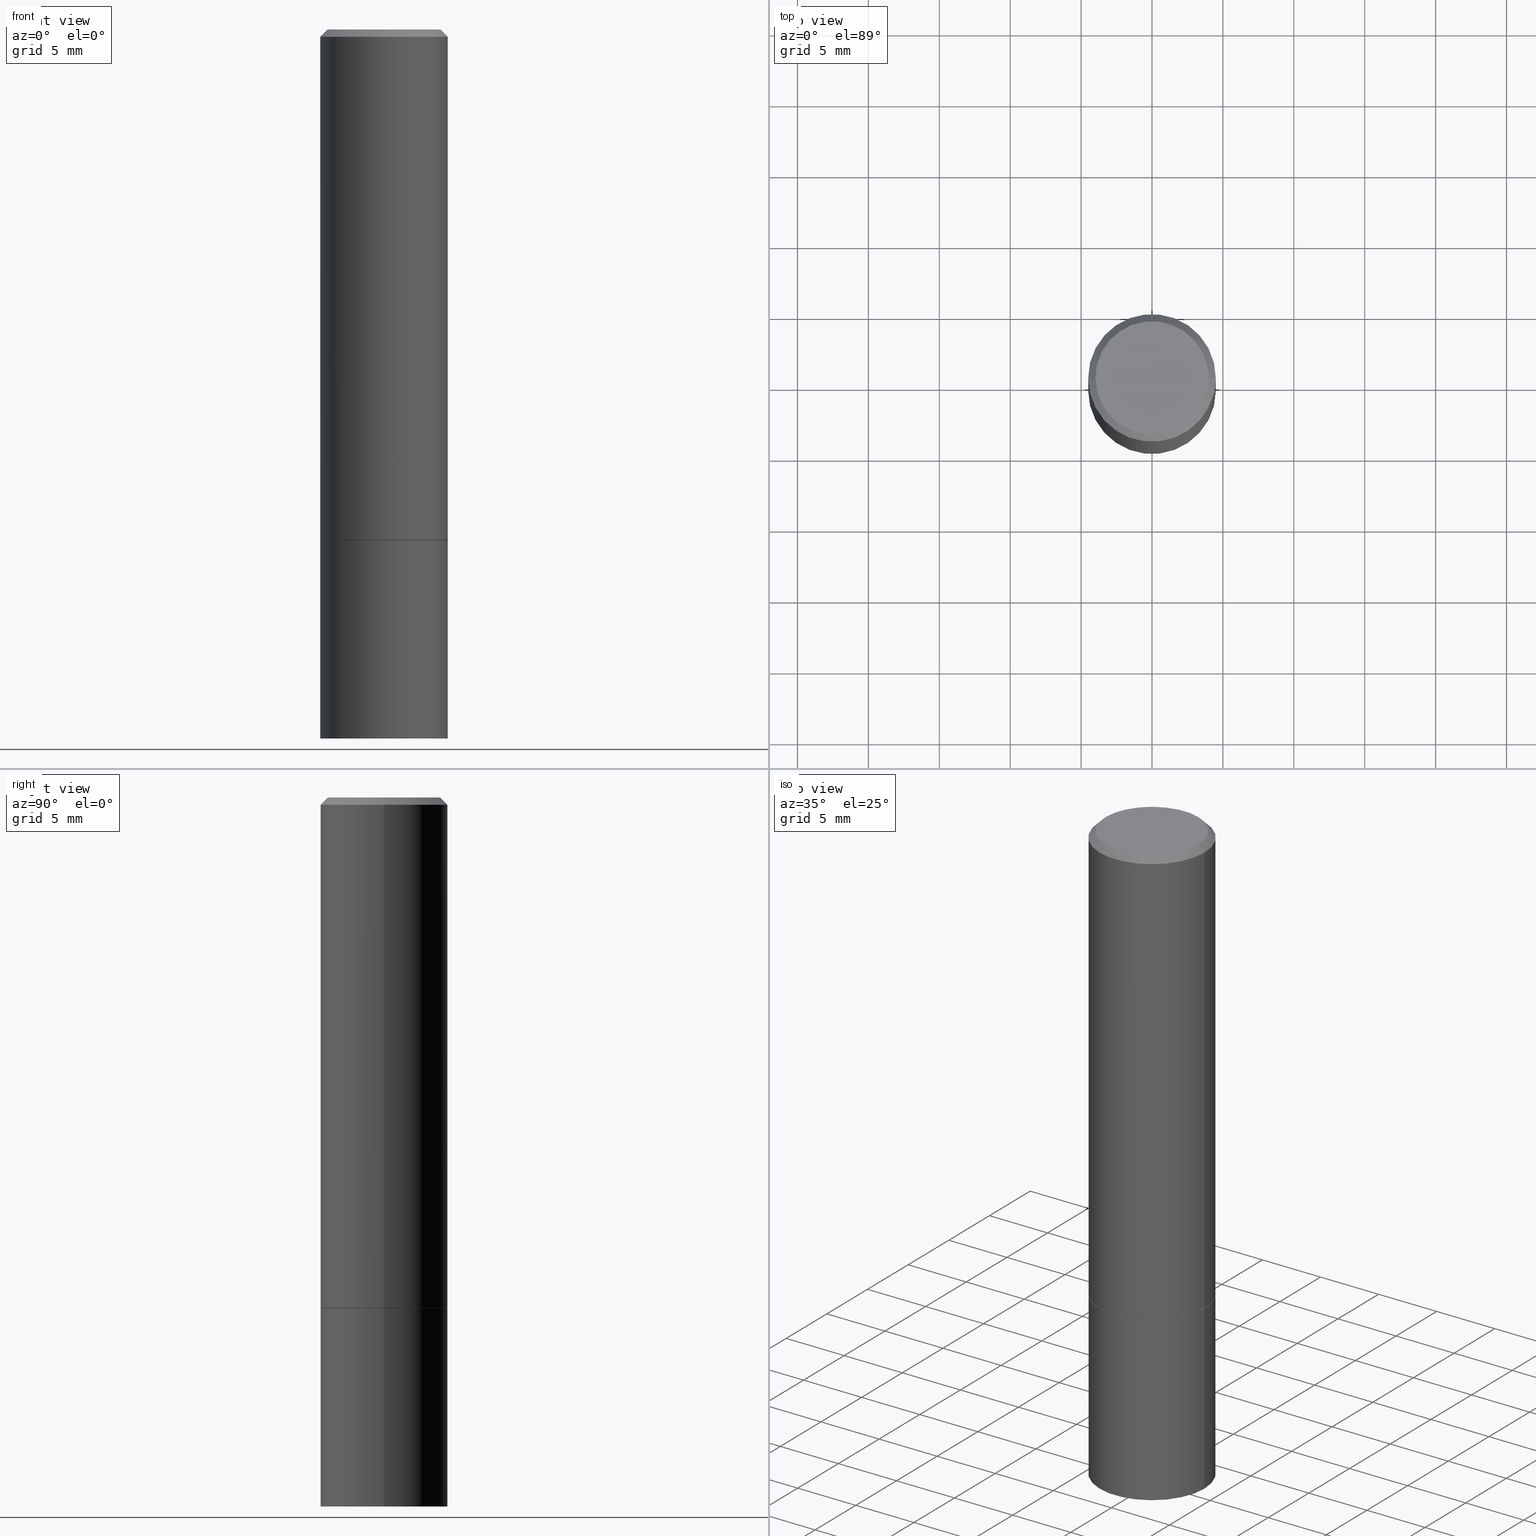
[diagram: canonical four-view strip — front | top / right | iso, engineering-drawing reading convention]
A machine part, canonical four-view strip (front | top / right | iso — engineering-drawing reading convention). The complete STEP part file that produces these views, byte-faithful:
ISO-10303-21;
HEADER;
FILE_DESCRIPTION (( 'STEP AP203' ),
    '1' );
FILE_NAME ('49190.STEP',
    '2024-02-28T16:54:01',
    ( '' ),
    ( '' ),
    'SwSTEP 2.0',
    'SolidWorks 2023',
    '' );
FILE_SCHEMA (( 'CONFIG_CONTROL_DESIGN' ));
ENDSEC;

DATA;
#1 = DIRECTION ( 'NONE',  ( -1.000000000000000000, 6.982962677686265922E-15, -4.876176775795935793E-29 ) ) ;
#2 = AXIS2_PLACEMENT_3D ( 'NONE', #68, #262, #7 ) ;
#3 = LOCAL_TIME ( 11, 54, 1.000000000000000000, #5 ) ;
#4 = ORIENTED_EDGE ( 'NONE', *, *, #314, .F. ) ;
#5 = COORDINATED_UNIVERSAL_TIME_OFFSET ( 5, 0, .BEHIND. ) ;
#6 = ORIENTED_EDGE ( 'NONE', *, *, #24, .F. ) ;
#7 = DIRECTION ( 'NONE',  ( 1.000000000000000000, -6.982962677686266711E-15, 0.000000000000000000 ) ) ;
#8 = ORIENTED_EDGE ( 'NONE', *, *, #40, .F. ) ;
#9 = AXIS2_PLACEMENT_3D ( 'NONE', #45, #157, #112 ) ;
#10 = PERSON_AND_ORGANIZATION ( #44, #79 ) ;
#11 = EDGE_CURVE ( 'NONE', #143, #229, #151, .T. ) ;
#12 = DESIGN_CONTEXT ( 'detailed design', #41, 'design' ) ;
#13 = CARTESIAN_POINT ( 'NONE',  ( -0.1771499999999999186, 1.258726456399016901E-15, -8.713893512386561121E-30 ) ) ;
#14 = FACE_OUTER_BOUND ( 'NONE', #281, .T. ) ;
#15 = DIRECTION ( 'NONE',  ( -2.445468806185136597E-29, 3.491481338843145583E-15, 1.000000000000000000 ) ) ;
#16 = DIRECTION ( 'NONE',  ( 0.7071067811865466846, -7.319954787623252890E-15, -0.7071067811865483499 ) ) ;
#17 = CC_DESIGN_DATE_AND_TIME_ASSIGNMENT ( #161, #347, ( #217 ) ) ;
#18 = DIRECTION ( 'NONE',  ( -1.000000000000000000, 6.982962677686265922E-15, -4.876176775795935793E-29 ) ) ;
#19 = AXIS2_PLACEMENT_3D ( 'NONE', #97, #242, #117 ) ;
#20 = DIRECTION ( 'NONE',  ( 2.445468806185136597E-29, -3.491481338843145583E-15, -1.000000000000000000 ) ) ;
#21 = CC_DESIGN_PERSON_AND_ORGANIZATION_ASSIGNMENT ( #149, #284, ( #166 ) ) ;
#22 = DIRECTION ( 'NONE',  ( 1.000000000000000000, 0.000000000000000000, 0.000000000000000000 ) ) ;
#23 = LINE ( 'NONE', #165, #152 ) ;
#24 = EDGE_CURVE ( 'NONE', #295, #146, #95, .T. ) ;
#25 = MECHANICAL_CONTEXT ( 'NONE', #115, 'mechanical' ) ;
#26 = CARTESIAN_POINT ( 'NONE',  ( 0.000000000000000000, 0.000000000000000000, 0.000000000000000000 ) ) ;
#27 = DIRECTION ( 'NONE',  ( 1.000000000000000000, -6.982962677686266711E-15, 0.000000000000000000 ) ) ;
#28 = VERTEX_POINT ( 'NONE', #228 ) ;
#29 = PERSON_AND_ORGANIZATION ( #44, #79 ) ;
#30 = CIRCLE ( 'NONE', #136, 0.1771499999999998354 ) ;
#31 = ORIENTED_EDGE ( 'NONE', *, *, #209, .T. ) ;
#32 = PERSON_AND_ORGANIZATION ( #44, #79 ) ;
#33 = ORIENTED_EDGE ( 'NONE', *, *, #11, .F. ) ;
#34 = COORDINATED_UNIVERSAL_TIME_OFFSET ( 5, 0, .BEHIND. ) ;
#35 = ORIENTED_EDGE ( 'NONE', *, *, #24, .T. ) ;
#36 =( GEOMETRIC_REPRESENTATION_CONTEXT ( 3 ) GLOBAL_UNCERTAINTY_ASSIGNED_CONTEXT ( ( #291 ) ) GLOBAL_UNIT_ASSIGNED_CONTEXT ( ( #85, #219, #245 ) ) REPRESENTATION_CONTEXT ( 'NONE', 'WORKASPACE' ) );
#37 = DIMENSIONAL_EXPONENTS ( 1.000000000000000000, 0.000000000000000000, 0.000000000000000000, 0.000000000000000000, 0.000000000000000000, 0.000000000000000000, 0.000000000000000000 ) ;
#38 = AXIS2_PLACEMENT_3D ( 'NONE', #237, #357, #232 ) ;
#39 = APPROVAL_DATE_TIME ( #147, #200 ) ;
#40 = EDGE_CURVE ( 'NONE', #295, #334, #275, .T. ) ;
#41 = APPLICATION_CONTEXT ( 'configuration controlled 3d designs of mechanical parts and assemblies' ) ;
#42 = PERSON_AND_ORGANIZATION ( #44, #79 ) ;
#43 = EDGE_CURVE ( 'NONE', #146, #84, #52, .T. ) ;
#44 = PERSON ( 'UNSPECIFIED', 'UNSPECIFIED', 'UNSPECIFIED', ('UNSPECIFIED'), ('UNSPECIFIED'), ('UNSPECIFIED') ) ;
#45 = CARTESIAN_POINT ( 'NONE',  ( 3.465962939006193759E-29, -4.948476501542390442E-15, -1.417300000000000004 ) ) ;
#46 = CARTESIAN_POINT ( 'NONE',  ( 3.463517470200008716E-29, -4.944985020203546646E-15, -1.416299999999999892 ) ) ;
#47 = LINE ( 'NONE', #156, #76 ) ;
#48 = PLANE ( 'NONE',  #74 ) ;
#49 = ADVANCED_BREP_SHAPE_REPRESENTATION ( '49190', ( #326, #319, #362 ), #36 ) ;
#50 = DIRECTION ( 'NONE',  ( -2.445468806185136877E-29, 3.491481338843145188E-15, 1.000000000000000000 ) ) ;
#51 = CARTESIAN_POINT ( 'NONE',  ( -0.1761500000000000010, -3.691557018152751358E-15, -1.417300000000000004 ) ) ;
#52 = CIRCLE ( 'NONE', #268, 0.1771500000000000019 ) ;
#53 = ORIENTED_EDGE ( 'NONE', *, *, #231, .F. ) ;
#54 = LOCAL_TIME ( 11, 54, 1.000000000000000000, #343 ) ;
#55 = FACE_OUTER_BOUND ( 'NONE', #160, .T. ) ;
#56 = DIRECTION ( 'NONE',  ( 1.000000000000000000, -6.982962677686267499E-15, 0.000000000000000000 ) ) ;
#57 = VERTEX_POINT ( 'NONE', #292 ) ;
#58 = LENGTH_MEASURE_WITH_UNIT ( LENGTH_MEASURE( 0.02539999999999999897 ), #140 );
#59 = CARTESIAN_POINT ( 'NONE',  ( 3.465962939006193759E-29, -4.948476501542390442E-15, -1.417300000000000004 ) ) ;
#60 = EDGE_CURVE ( 'NONE', #87, #66, #282, .T. ) ;
#61 = CLOSED_SHELL ( 'NONE', ( #276, #240, #159, #77, #172, #142, #325, #354 ) ) ;
#62 = APPROVAL ( #311, 'UNSPECIFIED' ) ;
#63 = DATE_AND_TIME ( #244, #3 ) ;
#64 = ORIENTED_EDGE ( 'NONE', *, *, #318, .F. ) ;
#65 = COORDINATED_UNIVERSAL_TIME_OFFSET ( 5, 0, .BEHIND. ) ;
#66 = VERTEX_POINT ( 'NONE', #241 ) ;
#67 = DATE_AND_TIME ( #154, #54 ) ;
#68 = CARTESIAN_POINT ( 'NONE',  ( 4.890937612370283668E-31, -6.982962677686305168E-17, -0.02000000000000004205 ) ) ;
#69 = DATE_AND_TIME ( #178, #329 ) ;
#70 = ORIENTED_EDGE ( 'NONE', *, *, #226, .T. ) ;
#71 = DIRECTION ( 'NONE',  ( 1.000000000000000000, -6.982962677686266711E-15, 0.000000000000000000 ) ) ;
#72 = EDGE_CURVE ( 'NONE', #256, #28, #126, .T. ) ;
#73 = CALENDAR_DATE ( 2024, 28, 2 ) ;
#74 = AXIS2_PLACEMENT_3D ( 'NONE', #191, #265, #18 ) ;
#75 = CC_DESIGN_SECURITY_CLASSIFICATION ( #350, ( #166 ) ) ;
#76 = VECTOR ( 'NONE', #16, 39.37007874015748143 ) ;
#77 = ADVANCED_FACE ( 'NONE', ( #296 ), #137, .T. ) ;
#78 = DIRECTION ( 'NONE',  ( -2.445468806185136597E-29, 3.491481338843145583E-15, 1.000000000000000000 ) ) ;
#79 = ORGANIZATION ( 'UNSPECIFIED', 'UNSPECIFIED', '' ) ;
#80 = VECTOR ( 'NONE', #359, 39.37007874015748854 ) ;
#81 = FACE_OUTER_BOUND ( 'NONE', #177, .T. ) ;
#82 = FACE_OUTER_BOUND ( 'NONE', #253, .T. ) ;
#83 = CARTESIAN_POINT ( 'NONE',  ( 4.890937612370283668E-31, -6.982962677686305168E-17, -0.02000000000000004205 ) ) ;
#84 = VERTEX_POINT ( 'NONE', #239 ) ;
#85 =( CONVERSION_BASED_UNIT ( 'INCH', #58 ) LENGTH_UNIT ( ) NAMED_UNIT ( #37 ) );
#86 = DIRECTION ( 'NONE',  ( -2.445468806185136597E-29, 3.491481338843145583E-15, 1.000000000000000000 ) ) ;
#87 = VERTEX_POINT ( 'NONE', #51 ) ;
#88 = PLANE ( 'NONE',  #222 ) ;
#89 = CARTESIAN_POINT ( 'NONE',  ( 0.000000000000000000, 0.000000000000000000, 0.000000000000000000 ) ) ;
#90 = CC_DESIGN_PERSON_AND_ORGANIZATION_ASSIGNMENT ( #29, #224, ( #128 ) ) ;
#91 = CONICAL_SURFACE ( 'NONE', #180, 0.1761500000000000010, 0.7853981633974141952 ) ;
#92 = CARTESIAN_POINT ( 'NONE',  ( 0.000000000000000000, 0.000000000000000000, 0.000000000000000000 ) ) ;
#93 = FACE_OUTER_BOUND ( 'NONE', #310, .T. ) ;
#94 = AXIS2_PLACEMENT_3D ( 'NONE', #346, #127, #348 ) ;
#95 = LINE ( 'NONE', #286, #167 ) ;
#96 = ADVANCED_FACE ( 'NONE', ( #214 ), #48, .F. ) ;
#97 = CARTESIAN_POINT ( 'NONE',  ( 3.465962939006193759E-29, -4.948476501542390442E-15, -1.417300000000000004 ) ) ;
#98 = ORIENTED_EDGE ( 'NONE', *, *, #287, .F. ) ;
#99 = APPROVAL ( #171, 'UNSPECIFIED' ) ;
#100 = DIRECTION ( 'NONE',  ( -2.445468806185136597E-29, 3.491481338843145583E-15, 1.000000000000000000 ) ) ;
#101 = EDGE_LOOP ( 'NONE', ( #70, #312, #203, #102 ) ) ;
#102 = ORIENTED_EDGE ( 'NONE', *, *, #360, .F. ) ;
#103 = CARTESIAN_POINT ( 'NONE',  ( 3.465962939006193759E-29, -4.948476501542390442E-15, -1.417300000000000004 ) ) ;
#104 = PERSON_AND_ORGANIZATION_ROLE ( 'classification_officer' ) ;
#105 = PRODUCT_RELATED_PRODUCT_CATEGORY ( 'detail', '', ( #128 ) ) ;
#106 = CARTESIAN_POINT ( 'NONE',  ( 0.1771500000000000019, -6.185508339894512836E-15, -1.417300000000000004 ) ) ;
#107 = DIRECTION ( 'NONE',  ( -2.445468806185136597E-29, 3.491481338843145583E-15, 1.000000000000000000 ) ) ;
#108 = CONICAL_SURFACE ( 'NONE', #301, 0.1761500000000000010, 0.7853981633974141952 ) ;
#109 = AXIS2_PLACEMENT_3D ( 'NONE', #192, #335, #168 ) ;
#110 = LINE ( 'NONE', #294, #356 ) ;
#111 = CARTESIAN_POINT ( 'NONE',  ( -0.1761500000000000010, -3.696855472500973761E-15, -1.417300000000000004 ) ) ;
#112 = DIRECTION ( 'NONE',  ( 1.000000000000000000, -6.982962677686267499E-15, 0.000000000000000000 ) ) ;
#113 = CC_DESIGN_PERSON_AND_ORGANIZATION_ASSIGNMENT ( #202, #306, ( #217 ) ) ;
#114 = CYLINDRICAL_SURFACE ( 'NONE', #289, 0.1771499999999999186 ) ;
#115 = APPLICATION_CONTEXT ( 'configuration controlled 3d designs of mechanical parts and assemblies' ) ;
#116 = ORIENTED_EDGE ( 'NONE', *, *, #332, .T. ) ;
#117 = DIRECTION ( 'NONE',  ( 1.000000000000000000, -6.982962677686266711E-15, 0.000000000000000000 ) ) ;
#118 = ORIENTED_EDGE ( 'NONE', *, *, #60, .T. ) ;
#119 = APPROVAL_PERSON_ORGANIZATION ( #42, #200, #204 ) ;
#120 = DIRECTION ( 'NONE',  ( -2.445468806185136597E-29, 3.491481338843145583E-15, 1.000000000000000000 ) ) ;
#121 = CIRCLE ( 'NONE', #235, 0.1571499999999998454 ) ;
#122 = ORIENTED_EDGE ( 'NONE', *, *, #40, .T. ) ;
#123 = ORIENTED_EDGE ( 'NONE', *, *, #60, .F. ) ;
#124 = DIRECTION ( 'NONE',  ( 1.000000000000000000, -6.982962677686267499E-15, 0.000000000000000000 ) ) ;
#125 = DIRECTION ( 'NONE',  ( -2.445468806185136877E-29, 3.491481338843145188E-15, 1.000000000000000000 ) ) ;
#126 = CIRCLE ( 'NONE', #290, 0.1571499999999998454 ) ;
#127 = DIRECTION ( 'NONE',  ( -2.445468806185136597E-29, 3.491481338843145583E-15, 1.000000000000000000 ) ) ;
#128 = PRODUCT ( '49190', '49190', '', ( #25 ) ) ;
#129 = CARTESIAN_POINT ( 'NONE',  ( 3.465962939006193759E-29, -4.948476501542390442E-15, -1.417300000000000004 ) ) ;
#130 = EDGE_CURVE ( 'NONE', #57, #283, #215, .T. ) ;
#131 = CC_DESIGN_PERSON_AND_ORGANIZATION_ASSIGNMENT ( #32, #104, ( #350 ) ) ;
#132 = DIRECTION ( 'NONE',  ( -2.445468806185136877E-29, 3.491481338843145188E-15, 1.000000000000000000 ) ) ;
#133 = CYLINDRICAL_SURFACE ( 'NONE', #248, 0.1771500000000000019 ) ;
#134 = CARTESIAN_POINT ( 'NONE',  ( 0.000000000000000000, 0.000000000000000000, 0.000000000000000000 ) ) ;
#135 = EDGE_CURVE ( 'NONE', #87, #283, #211, .T. ) ;
#136 = AXIS2_PLACEMENT_3D ( 'NONE', #233, #213, #322 ) ;
#137 = CONICAL_SURFACE ( 'NONE', #212, 0.1771499999999998354, 0.7853981633974471688 ) ;
#138 = DIRECTION ( 'NONE',  ( 2.438088387897960049E-29, -3.491481338843145188E-15, -1.000000000000000000 ) ) ;
#139 = ORIENTED_EDGE ( 'NONE', *, *, #226, .F. ) ;
#140 =( LENGTH_UNIT ( ) NAMED_UNIT ( * ) SI_UNIT ( $, .METRE. ) );
#141 = DIRECTION ( 'NONE',  ( -2.438088387897960049E-29, 3.491481338843145188E-15, 1.000000000000000000 ) ) ;
#142 = ADVANCED_FACE ( 'NONE', ( #216 ), #91, .T. ) ;
#143 = VERTEX_POINT ( 'NONE', #328 ) ;
#144 = VECTOR ( 'NONE', #358, 39.37007874015748143 ) ;
#145 = CARTESIAN_POINT ( 'NONE',  ( -0.1771500000000000019, -4.652002302128544174E-15, -1.968500000000000139 ) ) ;
#146 = VERTEX_POINT ( 'NONE', #106 ) ;
#147 = DATE_AND_TIME ( #73, #243 ) ;
#148 = ORIENTED_EDGE ( 'NONE', *, *, #186, .T. ) ;
#149 = PERSON_AND_ORGANIZATION ( #44, #79 ) ;
#150 = EDGE_LOOP ( 'NONE', ( #173, #118, #307, #342 ) ) ;
#151 = CIRCLE ( 'NONE', #2, 0.1771499999999998354 ) ;
#152 = VECTOR ( 'NONE', #364, 39.37007874015748143 ) ;
#153 = SECURITY_CLASSIFICATION_LEVEL ( 'unclassified' ) ;
#154 = CALENDAR_DATE ( 2024, 28, 2 ) ;
#155 = ORIENTED_EDGE ( 'NONE', *, *, #72, .T. ) ;
#156 = CARTESIAN_POINT ( 'NONE',  ( 0.1771499999999998354, -1.285166847082088818E-15, -0.02000000000000004205 ) ) ;
#157 = DIRECTION ( 'NONE',  ( -2.445468806185136597E-29, 3.491481338843145583E-15, 1.000000000000000000 ) ) ;
#158 = AXIS2_PLACEMENT_3D ( 'NONE', #59, #100, #274 ) ;
#159 = ADVANCED_FACE ( 'NONE', ( #82 ), #323, .T. ) ;
#160 = EDGE_LOOP ( 'NONE', ( #155, #31 ) ) ;
#161 = DATE_AND_TIME ( #340, #321 ) ;
#162 = DIRECTION ( 'NONE',  ( 1.000000000000000000, -6.982962677686266711E-15, 4.876176775795935232E-29 ) ) ;
#163 = ORIENTED_EDGE ( 'NONE', *, *, #43, .F. ) ;
#164 = CARTESIAN_POINT ( 'NONE',  ( 0.1761500000000000010, -6.178525377216826033E-15, -1.417300000000000004 ) ) ;
#165 = CARTESIAN_POINT ( 'NONE',  ( 0.1771499999999999186, -1.237031838352121605E-15, 8.638147158322495756E-30 ) ) ;
#166 = PRODUCT_DEFINITION_FORMATION_WITH_SPECIFIED_SOURCE ( 'ANY', '', #128, .NOT_KNOWN. ) ;
#167 = VECTOR ( 'NONE', #125, 39.37007874015748143 ) ;
#168 = DIRECTION ( 'NONE',  ( -1.000000000000000000, 6.982962677686265922E-15, -4.876176775795935793E-29 ) ) ;
#169 = DIRECTION ( 'NONE',  ( 1.000000000000000000, -6.982962677686266711E-15, 4.876176775795935793E-29 ) ) ;
#170 = ORIENTED_EDGE ( 'NONE', *, *, #314, .T. ) ;
#171 = APPROVAL_STATUS ( 'not_yet_approved' ) ;
#172 = ADVANCED_FACE ( 'NONE', ( #361 ), #114, .T. ) ;
#173 = ORIENTED_EDGE ( 'NONE', *, *, #135, .F. ) ;
#174 = APPROVAL_ROLE ( '' ) ;
#175 = ORIENTED_EDGE ( 'NONE', *, *, #247, .T. ) ;
#176 = LINE ( 'NONE', #206, #144 ) ;
#177 = EDGE_LOOP ( 'NONE', ( #8, #207 ) ) ;
#178 = CALENDAR_DATE ( 2024, 28, 2 ) ;
#179 = ORIENTED_EDGE ( 'NONE', *, *, #305, .T. ) ;
#180 = AXIS2_PLACEMENT_3D ( 'NONE', #331, #327, #56 ) ;
#181 = ADVANCED_FACE ( 'NONE', ( #14 ), #133, .T. ) ;
#182 = DIRECTION ( 'NONE',  ( 1.000000000000000000, -6.982962677686267499E-15, 4.876176775795935793E-29 ) ) ;
#183 = PLANE ( 'NONE',  #109 ) ;
#184 = LINE ( 'NONE', #13, #349 ) ;
#185 = CARTESIAN_POINT ( 'NONE',  ( 4.890937612370283668E-31, -6.982962677686305168E-17, -0.02000000000000004205 ) ) ;
#186 = EDGE_CURVE ( 'NONE', #28, #229, #47, .T. ) ;
#187 = DIRECTION ( 'NONE',  ( 2.445468806185136597E-29, -3.491481338843145583E-15, -1.000000000000000000 ) ) ;
#188 = AXIS2_PLACEMENT_3D ( 'NONE', #46, #15, #264 ) ;
#189 = EDGE_LOOP ( 'NONE', ( #273, #116 ) ) ;
#190 = APPROVAL_DATE_TIME ( #63, #99 ) ;
#191 = CARTESIAN_POINT ( 'NONE',  ( 1.237031838352156709E-15, 0.1771499999999950614, -1.417300000000000448 ) ) ;
#192 = CARTESIAN_POINT ( 'NONE',  ( 1.237031838352170120E-15, 0.1771499999999931463, -1.968500000000000583 ) ) ;
#193 = ORIENTED_EDGE ( 'NONE', *, *, #287, .T. ) ;
#194 = DIRECTION ( 'NONE',  ( 0.7071067811865232589, -2.468850131082003836E-15, 0.7071067811865715536 ) ) ;
#195 = CIRCLE ( 'NONE', #188, 0.1771500000000000019 ) ;
#196 = VECTOR ( 'NONE', #194, 39.37007874015748854 ) ;
#197 = CIRCLE ( 'NONE', #19, 0.1771500000000000019 ) ;
#198 = APPROVAL_ROLE ( '' ) ;
#199 = CYLINDRICAL_SURFACE ( 'NONE', #300, 0.1771499999999999186 ) ;
#200 = APPROVAL ( #258, 'UNSPECIFIED' ) ;
#201 = ORIENTED_EDGE ( 'NONE', *, *, #186, .F. ) ;
#202 = PERSON_AND_ORGANIZATION ( #44, #79 ) ;
#203 = ORIENTED_EDGE ( 'NONE', *, *, #130, .F. ) ;
#204 = APPROVAL_ROLE ( '' ) ;
#205 = ORIENTED_EDGE ( 'NONE', *, *, #318, .T. ) ;
#206 = CARTESIAN_POINT ( 'NONE',  ( -0.1771499999999998354, 1.167202211575257912E-15, -0.02000000000000004205 ) ) ;
#207 = ORIENTED_EDGE ( 'NONE', *, *, #247, .F. ) ;
#208 = DIRECTION ( 'NONE',  ( -2.445468806185136597E-29, 3.491481338843145583E-15, 1.000000000000000000 ) ) ;
#209 = EDGE_CURVE ( 'NONE', #28, #256, #121, .T. ) ;
#210 = APPROVAL_PERSON_ORGANIZATION ( #308, #62, #174 ) ;
#211 = LINE ( 'NONE', #111, #80 ) ;
#212 = AXIS2_PLACEMENT_3D ( 'NONE', #185, #187, #324 ) ;
#213 = DIRECTION ( 'NONE',  ( -2.445468806185136597E-29, 3.491481338843145583E-15, 1.000000000000000000 ) ) ;
#214 = FACE_OUTER_BOUND ( 'NONE', #189, .T. ) ;
#215 = CIRCLE ( 'NONE', #38, 0.1771500000000000019 ) ;
#216 = FACE_OUTER_BOUND ( 'NONE', #150, .T. ) ;
#217 = PRODUCT_DEFINITION ( 'UNKNOWN', '', #166, #12 ) ;
#218 = CARTESIAN_POINT ( 'NONE',  ( 0.000000000000000000, 0.000000000000000000, 0.000000000000000000 ) ) ;
#219 =( NAMED_UNIT ( * ) PLANE_ANGLE_UNIT ( ) SI_UNIT ( $, .RADIAN. ) );
#220 = DIRECTION ( 'NONE',  ( 1.000000000000000000, -6.982962677686265922E-15, 4.876176775795935793E-29 ) ) ;
#221 = ADVANCED_FACE ( 'NONE', ( #81 ), #183, .T. ) ;
#222 = AXIS2_PLACEMENT_3D ( 'NONE', #271, #138, #1 ) ;
#223 = EDGE_LOOP ( 'NONE', ( #122, #205, #163, #6 ) ) ;
#224 = PERSON_AND_ORGANIZATION_ROLE ( 'design_owner' ) ;
#225 = EDGE_LOOP ( 'NONE', ( #201, #315, #298, #227 ) ) ;
#226 = EDGE_CURVE ( 'NONE', #66, #87, #257, .T. ) ;
#227 = ORIENTED_EDGE ( 'NONE', *, *, #11, .T. ) ;
#228 = CARTESIAN_POINT ( 'NONE',  ( 0.1571499999999998454, -1.181647053715941838E-15, 7.968752866068134566E-30 ) ) ;
#229 = VERTEX_POINT ( 'NONE', #272 ) ;
#230 = PERSON_AND_ORGANIZATION_ROLE ( 'creator' ) ;
#231 = EDGE_CURVE ( 'NONE', #57, #229, #23, .T. ) ;
#232 = DIRECTION ( 'NONE',  ( 1.000000000000000000, -6.982962677686266711E-15, 0.000000000000000000 ) ) ;
#233 = CARTESIAN_POINT ( 'NONE',  ( 4.890937612370283668E-31, -6.982962677686305168E-17, -0.02000000000000004205 ) ) ;
#234 = DIRECTION ( 'NONE',  ( -2.445468806185136597E-29, 3.491481338843145583E-15, 1.000000000000000000 ) ) ;
#235 = AXIS2_PLACEMENT_3D ( 'NONE', #134, #234, #355 ) ;
#236 = CC_DESIGN_APPROVAL ( #99, ( #217 ) ) ;
#237 = CARTESIAN_POINT ( 'NONE',  ( 3.463517470200008716E-29, -4.944985020203546646E-15, -1.416299999999999892 ) ) ;
#238 = AXIS2_PLACEMENT_3D ( 'NONE', #278, #141, #220 ) ;
#239 = CARTESIAN_POINT ( 'NONE',  ( -0.1771500000000000019, -4.652002302128544174E-15, -1.417300000000000004 ) ) ;
#240 = ADVANCED_FACE ( 'NONE', ( #93 ), #199, .T. ) ;
#241 = CARTESIAN_POINT ( 'NONE',  ( 0.1761500000000000010, -6.178525377216826033E-15, -1.417300000000000004 ) ) ;
#242 = DIRECTION ( 'NONE',  ( -2.445468806185136597E-29, 3.491481338843145583E-15, 1.000000000000000000 ) ) ;
#243 = LOCAL_TIME ( 11, 54, 1.000000000000000000, #288 ) ;
#244 = CALENDAR_DATE ( 2024, 28, 2 ) ;
#245 =( NAMED_UNIT ( * ) SI_UNIT ( $, .STERADIAN. ) SOLID_ANGLE_UNIT ( ) );
#246 = CARTESIAN_POINT ( 'NONE',  ( -0.1571499999999998454, 1.132287398186826855E-15, -7.796414549896502556E-30 ) ) ;
#247 = EDGE_CURVE ( 'NONE', #334, #295, #255, .T. ) ;
#248 = AXIS2_PLACEMENT_3D ( 'NONE', #320, #78, #293 ) ;
#249 = ORIENTED_EDGE ( 'NONE', *, *, #130, .T. ) ;
#250 = APPLICATION_PROTOCOL_DEFINITION ( 'international standard', 'config_control_design', 1994, #41 ) ;
#251 = ORIENTED_EDGE ( 'NONE', *, *, #231, .T. ) ;
#252 = SHAPE_DEFINITION_REPRESENTATION ( #260, #49 ) ;
#253 = EDGE_LOOP ( 'NONE', ( #270, #148, #170, #344 ) ) ;
#254 = DATE_TIME_ROLE ( 'classification_date' ) ;
#255 = CIRCLE ( 'NONE', #266, 0.1771500000000000019 ) ;
#256 = VERTEX_POINT ( 'NONE', #246 ) ;
#257 = CIRCLE ( 'NONE', #158, 0.1761500000000000010 ) ;
#258 = APPROVAL_STATUS ( 'not_yet_approved' ) ;
#259 = DIRECTION ( 'NONE',  ( -2.445468806185136597E-29, 3.491481338843145583E-15, 1.000000000000000000 ) ) ;
#260 = PRODUCT_DEFINITION_SHAPE ( 'NONE', 'NONE',  #217 ) ;
#261 = CARTESIAN_POINT ( 'NONE',  ( -0.1771500000000000019, -1.248680867091185705E-15, -1.416299999999999892 ) ) ;
#262 = DIRECTION ( 'NONE',  ( -2.445468806185136597E-29, 3.491481338843145583E-15, 1.000000000000000000 ) ) ;
#263 = CARTESIAN_POINT ( 'NONE',  ( 0.000000000000000000, 0.000000000000000000, 0.000000000000000000 ) ) ;
#264 = DIRECTION ( 'NONE',  ( 1.000000000000000000, -6.982962677686266711E-15, 0.000000000000000000 ) ) ;
#265 = DIRECTION ( 'NONE',  ( 2.438088387897960049E-29, -3.491481338843145188E-15, -1.000000000000000000 ) ) ;
#266 = AXIS2_PLACEMENT_3D ( 'NONE', #303, #280, #27 ) ;
#267 = CC_DESIGN_APPROVAL ( #200, ( #350 ) ) ;
#268 = AXIS2_PLACEMENT_3D ( 'NONE', #103, #208, #71 ) ;
#269 = CC_DESIGN_DATE_AND_TIME_ASSIGNMENT ( #67, #254, ( #350 ) ) ;
#270 = ORIENTED_EDGE ( 'NONE', *, *, #209, .F. ) ;
#271 = CARTESIAN_POINT ( 'NONE',  ( 1.097372584798395600E-15, 0.1571499999999998454, -5.486862923991998709E-16 ) ) ;
#272 = CARTESIAN_POINT ( 'NONE',  ( 0.1771499999999998354, -1.285166847082088818E-15, -0.02000000000000004205 ) ) ;
#273 = ORIENTED_EDGE ( 'NONE', *, *, #43, .T. ) ;
#274 = DIRECTION ( 'NONE',  ( 1.000000000000000000, -6.982962677686267499E-15, 0.000000000000000000 ) ) ;
#275 = CIRCLE ( 'NONE', #94, 0.1771500000000000019 ) ;
#276 = ADVANCED_FACE ( 'NONE', ( #351 ), #108, .T. ) ;
#277 = DIRECTION ( 'NONE',  ( 1.000000000000000000, -6.982962677686266711E-15, 4.876176775795935232E-29 ) ) ;
#278 = CARTESIAN_POINT ( 'NONE',  ( 3.465962939006193759E-29, -4.948476501542390442E-15, -1.417300000000000004 ) ) ;
#279 = EDGE_CURVE ( 'NONE', #256, #143, #176, .T. ) ;
#280 = DIRECTION ( 'NONE',  ( -2.445468806185136597E-29, 3.491481338843145583E-15, 1.000000000000000000 ) ) ;
#281 = EDGE_LOOP ( 'NONE', ( #64, #175, #35, #339 ) ) ;
#282 = CIRCLE ( 'NONE', #9, 0.1761500000000000010 ) ;
#283 = VERTEX_POINT ( 'NONE', #261 ) ;
#284 = PERSON_AND_ORGANIZATION_ROLE ( 'design_supplier' ) ;
#285 = EDGE_LOOP ( 'NONE', ( #98, #179, #251, #33 ) ) ;
#286 = CARTESIAN_POINT ( 'NONE',  ( 0.1771500000000000019, -1.237031838352122197E-15, 8.638147158322499960E-30 ) ) ;
#287 = EDGE_CURVE ( 'NONE', #283, #143, #184, .T. ) ;
#288 = COORDINATED_UNIVERSAL_TIME_OFFSET ( 5, 0, .BEHIND. ) ;
#289 = AXIS2_PLACEMENT_3D ( 'NONE', #218, #86, #162 ) ;
#290 = AXIS2_PLACEMENT_3D ( 'NONE', #263, #107, #182 ) ;
#291 = UNCERTAINTY_MEASURE_WITH_UNIT (LENGTH_MEASURE( 1.000000000000000082E-05 ), #85, 'distance_accuracy_value', 'NONE');
#292 = CARTESIAN_POINT ( 'NONE',  ( 0.1771500000000000019, -6.182016858555669040E-15, -1.416299999999999892 ) ) ;
#293 = DIRECTION ( 'NONE',  ( 1.000000000000000000, -6.982962677686266711E-15, 4.876176775795935793E-29 ) ) ;
#294 = CARTESIAN_POINT ( 'NONE',  ( -0.1771500000000000019, 1.258726456399017493E-15, -8.713893512386565325E-30 ) ) ;
#295 = VERTEX_POINT ( 'NONE', #352 ) ;
#296 = FACE_OUTER_BOUND ( 'NONE', #225, .T. ) ;
#297 = CYLINDRICAL_SURFACE ( 'NONE', #317, 0.1771500000000000019 ) ;
#298 = ORIENTED_EDGE ( 'NONE', *, *, #279, .T. ) ;
#299 = DIRECTION ( 'NONE',  ( 0.000000000000000000, 0.000000000000000000, 1.000000000000000000 ) ) ;
#300 = AXIS2_PLACEMENT_3D ( 'NONE', #89, #333, #277 ) ;
#301 = AXIS2_PLACEMENT_3D ( 'NONE', #129, #259, #124 ) ;
#302 = FACE_OUTER_BOUND ( 'NONE', #304, .T. ) ;
#303 = CARTESIAN_POINT ( 'NONE',  ( 4.813905344975441835E-29, -6.872981015512731707E-15, -1.968500000000000139 ) ) ;
#304 = EDGE_LOOP ( 'NONE', ( #139, #123 ) ) ;
#305 = EDGE_CURVE ( 'NONE', #283, #57, #195, .T. ) ;
#306 = PERSON_AND_ORGANIZATION_ROLE ( 'creator' ) ;
#307 = ORIENTED_EDGE ( 'NONE', *, *, #360, .T. ) ;
#308 = PERSON_AND_ORGANIZATION ( #44, #79 ) ;
#309 = APPROVAL_PERSON_ORGANIZATION ( #336, #99, #198 ) ;
#310 = EDGE_LOOP ( 'NONE', ( #249, #193, #4, #53 ) ) ;
#311 = APPROVAL_STATUS ( 'not_yet_approved' ) ;
#312 = ORIENTED_EDGE ( 'NONE', *, *, #135, .T. ) ;
#313 = APPROVAL_DATE_TIME ( #69, #62 ) ;
#314 = EDGE_CURVE ( 'NONE', #229, #143, #30, .T. ) ;
#315 = ORIENTED_EDGE ( 'NONE', *, *, #72, .F. ) ;
#316 = CLOSED_SHELL ( 'NONE', ( #345, #221, #96, #181 ) ) ;
#317 = AXIS2_PLACEMENT_3D ( 'NONE', #26, #120, #169 ) ;
#318 = EDGE_CURVE ( 'NONE', #334, #84, #110, .T. ) ;
#319 = MANIFOLD_SOLID_BREP ( 'Body-Move/Copy2[2]', #61 ) ;
#320 = CARTESIAN_POINT ( 'NONE',  ( 0.000000000000000000, 0.000000000000000000, 0.000000000000000000 ) ) ;
#321 = LOCAL_TIME ( 11, 54, 1.000000000000000000, #65 ) ;
#322 = DIRECTION ( 'NONE',  ( 1.000000000000000000, -6.982962677686266711E-15, 0.000000000000000000 ) ) ;
#323 = CONICAL_SURFACE ( 'NONE', #337, 0.1771499999999998354, 0.7853981633974471688 ) ;
#324 = DIRECTION ( 'NONE',  ( -1.000000000000000000, 6.982962677686266711E-15, 0.000000000000000000 ) ) ;
#325 = ADVANCED_FACE ( 'NONE', ( #302 ), #330, .F. ) ;
#326 = MANIFOLD_SOLID_BREP ( 'Body-Move/Copy2[1]', #316 ) ;
#327 = DIRECTION ( 'NONE',  ( -2.445468806185136597E-29, 3.491481338843145583E-15, 1.000000000000000000 ) ) ;
#328 = CARTESIAN_POINT ( 'NONE',  ( -0.1771499999999998354, 1.167202211575257912E-15, -0.02000000000000004205 ) ) ;
#329 = LOCAL_TIME ( 11, 54, 1.000000000000000000, #34 ) ;
#330 = PLANE ( 'NONE',  #238 ) ;
#331 = CARTESIAN_POINT ( 'NONE',  ( 3.465962939006193759E-29, -4.948476501542390442E-15, -1.417300000000000004 ) ) ;
#332 = EDGE_CURVE ( 'NONE', #84, #146, #197, .T. ) ;
#333 = DIRECTION ( 'NONE',  ( -2.445468806185136597E-29, 3.491481338843145583E-15, 1.000000000000000000 ) ) ;
#334 = VERTEX_POINT ( 'NONE', #145 ) ;
#335 = DIRECTION ( 'NONE',  ( 2.438088387897960049E-29, -3.491481338843145188E-15, -1.000000000000000000 ) ) ;
#336 = PERSON_AND_ORGANIZATION ( #44, #79 ) ;
#337 = AXIS2_PLACEMENT_3D ( 'NONE', #83, #20, #353 ) ;
#338 = CC_DESIGN_APPROVAL ( #62, ( #166 ) ) ;
#339 = ORIENTED_EDGE ( 'NONE', *, *, #332, .F. ) ;
#340 = CALENDAR_DATE ( 2024, 28, 2 ) ;
#341 = CC_DESIGN_PERSON_AND_ORGANIZATION_ASSIGNMENT ( #10, #230, ( #166 ) ) ;
#342 = ORIENTED_EDGE ( 'NONE', *, *, #305, .F. ) ;
#343 = COORDINATED_UNIVERSAL_TIME_OFFSET ( 5, 0, .BEHIND. ) ;
#344 = ORIENTED_EDGE ( 'NONE', *, *, #279, .F. ) ;
#345 = ADVANCED_FACE ( 'NONE', ( #363 ), #297, .T. ) ;
#346 = CARTESIAN_POINT ( 'NONE',  ( 4.813905344975441835E-29, -6.872981015512731707E-15, -1.968500000000000139 ) ) ;
#347 = DATE_TIME_ROLE ( 'creation_date' ) ;
#348 = DIRECTION ( 'NONE',  ( 1.000000000000000000, -6.982962677686266711E-15, 0.000000000000000000 ) ) ;
#349 = VECTOR ( 'NONE', #132, 39.37007874015748143 ) ;
#350 = SECURITY_CLASSIFICATION ( '', '', #153 ) ;
#351 = FACE_OUTER_BOUND ( 'NONE', #101, .T. ) ;
#352 = CARTESIAN_POINT ( 'NONE',  ( 0.1771500000000000019, -8.110012853864854101E-15, -1.968500000000000139 ) ) ;
#353 = DIRECTION ( 'NONE',  ( -1.000000000000000000, 6.982962677686266711E-15, 0.000000000000000000 ) ) ;
#354 = ADVANCED_FACE ( 'NONE', ( #55 ), #88, .F. ) ;
#355 = DIRECTION ( 'NONE',  ( 1.000000000000000000, -6.982962677686267499E-15, 4.876176775795935793E-29 ) ) ;
#356 = VECTOR ( 'NONE', #50, 39.37007874015748143 ) ;
#357 = DIRECTION ( 'NONE',  ( -2.445468806185136597E-29, 3.491481338843145583E-15, 1.000000000000000000 ) ) ;
#358 = DIRECTION ( 'NONE',  ( -0.7071067811865466846, 2.468850131082247989E-15, -0.7071067811865483499 ) ) ;
#359 = DIRECTION ( 'NONE',  ( -0.7071067811865232589, 7.493145998870265808E-15, 0.7071067811865715536 ) ) ;
#360 = EDGE_CURVE ( 'NONE', #66, #57, #365, .T. ) ;
#361 = FACE_OUTER_BOUND ( 'NONE', #285, .T. ) ;
#362 = AXIS2_PLACEMENT_3D ( 'NONE', #92, #299, #22 ) ;
#363 = FACE_OUTER_BOUND ( 'NONE', #223, .T. ) ;
#364 = DIRECTION ( 'NONE',  ( -2.445468806185136877E-29, 3.491481338843145188E-15, 1.000000000000000000 ) ) ;
#365 = LINE ( 'NONE', #164, #196 ) ;
#366 = APPLICATION_PROTOCOL_DEFINITION ( 'international standard', 'config_control_design', 1994, #115 ) ;
ENDSEC;
END-ISO-10303-21;
